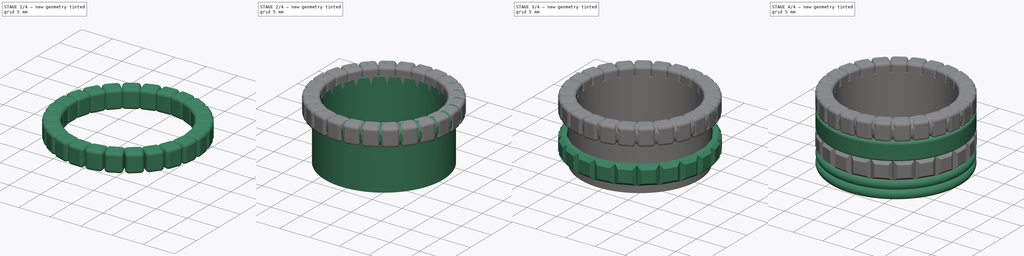
[diagram: build sequence overview — one tinted view per stage of 4, left to right]
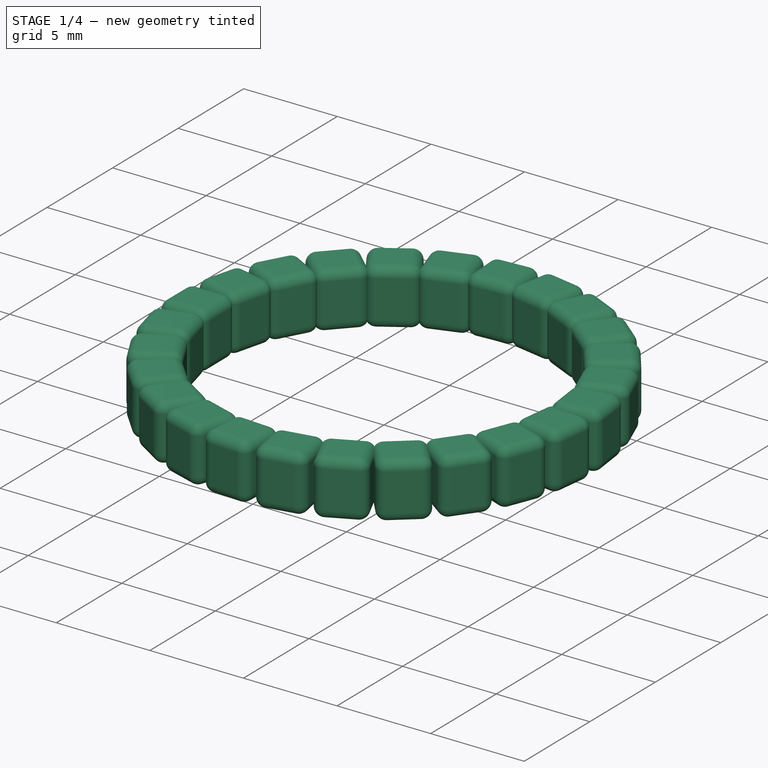
[diagram: stage 1 of 4 — iso view after this stage's code; geometry added in this stage tinted green]
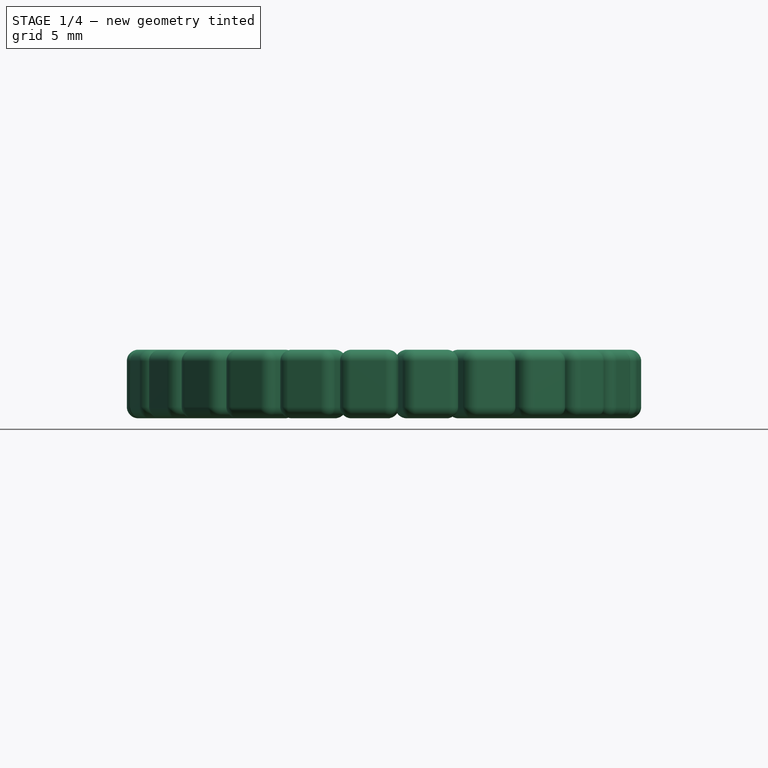
[diagram: stage 1 of 4 — front view after this stage's code; geometry added in this stage tinted green]
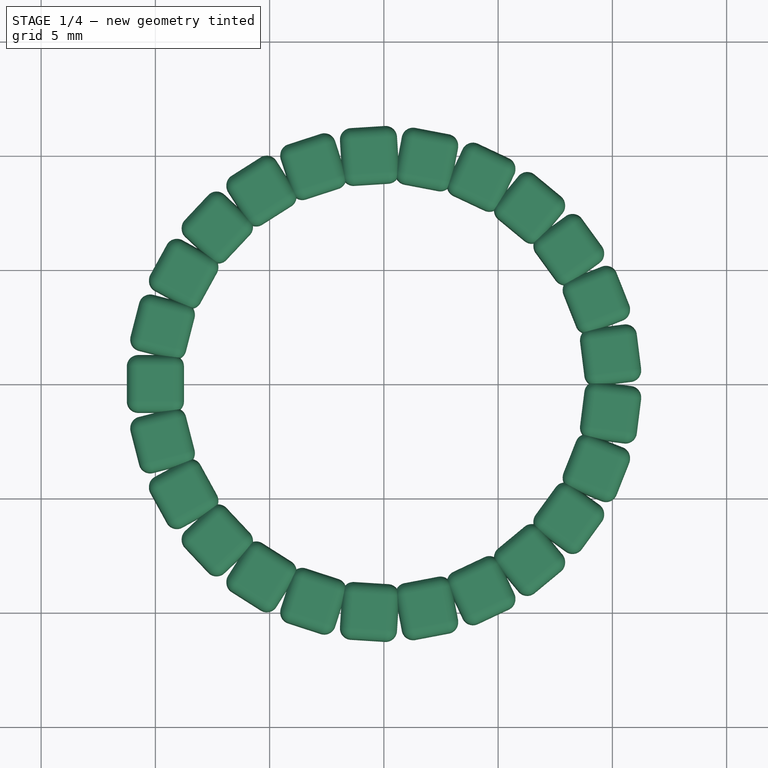
[diagram: stage 1 of 4 — top view after this stage's code; geometry added in this stage tinted green]
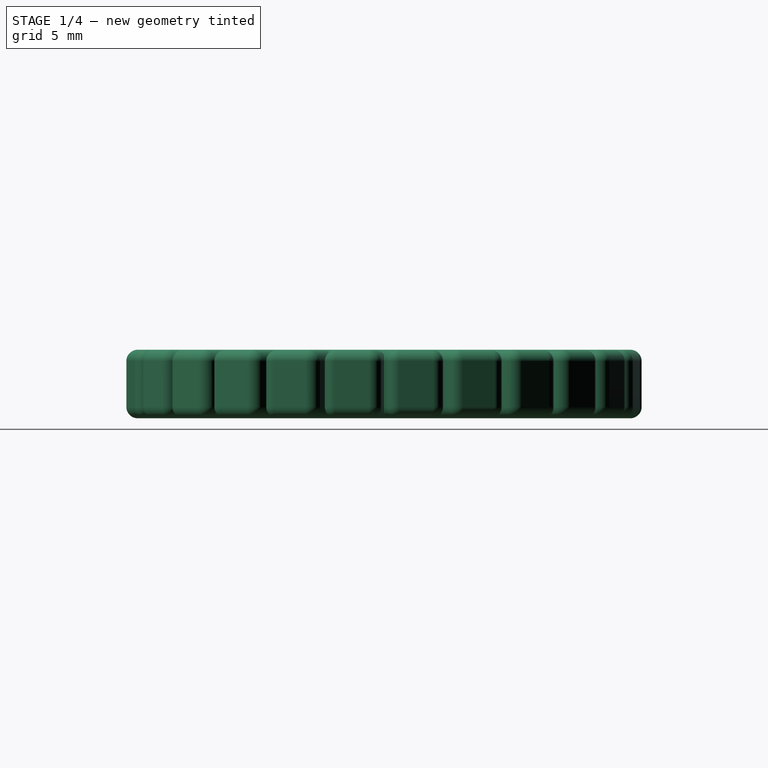
[diagram: stage 1 of 4 — right view after this stage's code; geometry added in this stage tinted green]
FCSTD DOCUMENT  (FreeCAD 1.0R39109 (Git))
Label: ring2
License: All rights reserved
LicenseURL: https://en.wikipedia.org/wiki/All_rights_reserved
objects: Sketcher::SketchObject×9, PartDesign::Revolution×5, PartDesign::Body×5, PartDesign::Pad×3, PartDesign::PolarPattern×3, Spreadsheet::Sheet×1, PartDesign::Chamfer×1, PartDesign::Fillet×1
note: 59 computed .brp shape members not serialized (recipe doc carries the construction recipe); baked Part::Feature solids carry a one-line shape summary decoded from their .brp

FEATURE [PartDesign::Body] Body  label="GrosGrain"
  AllowCompound = false
  Group = -> [Sketch,Revolution,PolarPattern,Sketch007,Revolution003]
  Origin = -> Origin
  Tip = -> Revolution003
FEATURE [Sketcher::SketchObject] Sketch008
  ArcFitTolerance = 1e-06
  AttachmentSupport = -> [XZ_Plane006]
  FullyConstrained = false
  MakeInternals = false
  MapMode = 5
  Placement = pos=(0,0,0) rot=(1,0,0;1.5708rad)
  expr: Constraints[10] = Spreadsheet.ring_radius
  expr: Constraints[8] = <<Spreadsheet>>.pearl_radius * 2
  expr: Constraints[9] = Spreadsheet.pearl_height
  sketch-geometry (4):
    g0: LineSegment StartX=-11.25 StartY=2.95111 StartZ=0 EndX=-11.25 EndY=-0.0488913 EndZ=0
    g1: LineSegment StartX=-11.25 StartY=-0.0488913 StartZ=0 EndX=-8.75 EndY=-0.0488913 EndZ=0
    g2: LineSegment StartX=-8.75 StartY=-0.0488913 StartZ=0 EndX=-8.75 EndY=2.95111 EndZ=0
    g3: LineSegment StartX=-8.75 StartY=2.95111 StartZ=0 EndX=-11.25 EndY=2.95111 EndZ=0
  constraints (11):
    c: Coincident(g0,g1)
    c: Coincident(g1,g2)
    c: Coincident(g2,g3)
    c: Coincident(g3,g0)
    c: Vertical(g0)
    c: Vertical(g2)
    c: Horizontal(g1)
    c: Horizontal(g3)
    c: DistanceX(g3,g3) = 2.5
    c: DistanceY(g0,g0) = 3
    c: Distance(g-2,g0) = 11.25
FEATURE [PartDesign::Pad] Pad002
  Direction = (0,-1,2e-16)
  Length = 2.5
  Length2 = 10
  Midplane = true
  Placement = pos=(0,0,0) rot=(1,0,0;1.5708rad)
  Profile = -> Sketch008
  ReferenceAxis = -> Sketch008 [N_Axis]
  Refine = true
  Suppressed = false
  Type = 0
  expr: Length = Spreadsheet.pearl_radius * 2
FEATURE [PartDesign::Fillet] Fillet
  Base = -> Pad002 [Edge1,Edge2,Edge3,Edge4,Edge5,Edge6,Edge7,Edge8,Edge9,Edge10,Edge11,Edge12]
  BaseFeature = -> Pad002
  Placement = pos=(0,0,0) rot=(1,0,0;1.5708rad)
  Radius = 0.5
  Refine = true
  SupportTransform = false
  Suppressed = false
  UseAllEdges = true
FEATURE [PartDesign::PolarPattern] PolarPattern002
  Angle = 360
  Axis = -> Z_Axis006
  BaseFeature = -> Fillet
  Mode = 0
  Occurrences = 25
  Offset = 120
  Originals = -> [Fillet]
  Placement = pos=(0,0,0) rot=(1,0,0;1.5708rad)
  Refine = true
  Suppressed = false
  TransformMode = 1
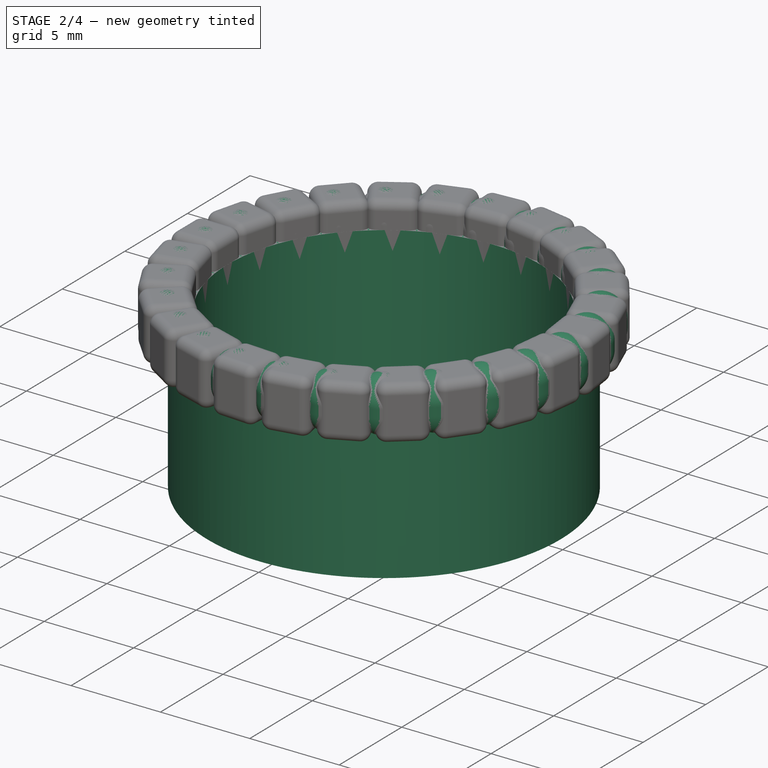
[diagram: stage 2 of 4 — iso view after this stage's code; geometry added in this stage tinted green]
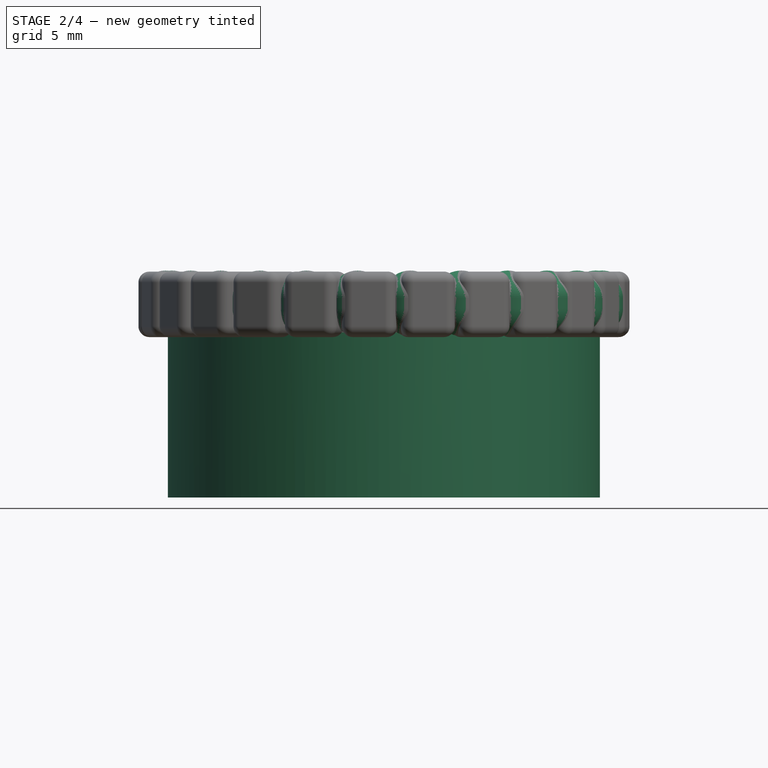
[diagram: stage 2 of 4 — front view after this stage's code; geometry added in this stage tinted green]
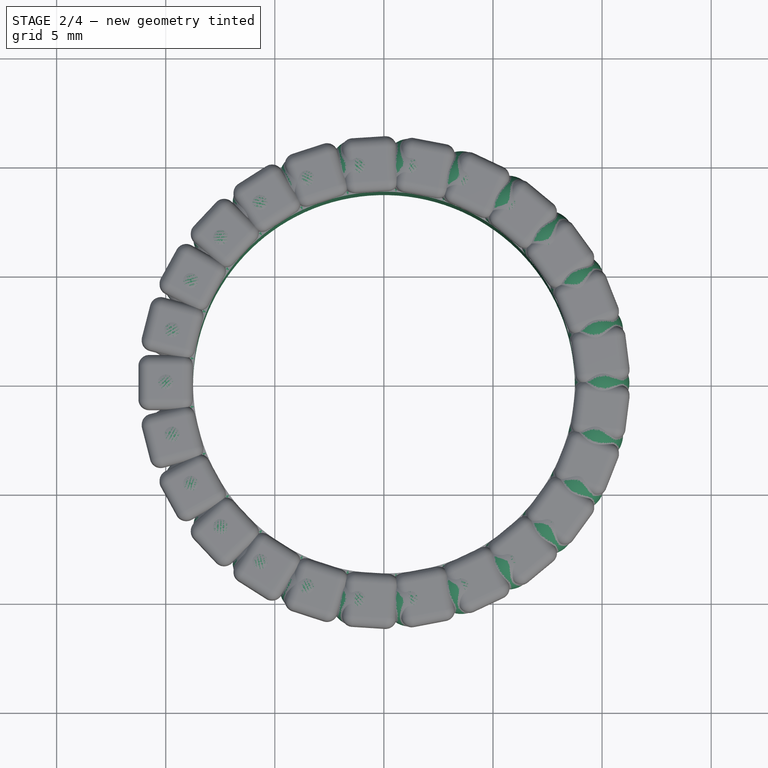
[diagram: stage 2 of 4 — top view after this stage's code; geometry added in this stage tinted green]
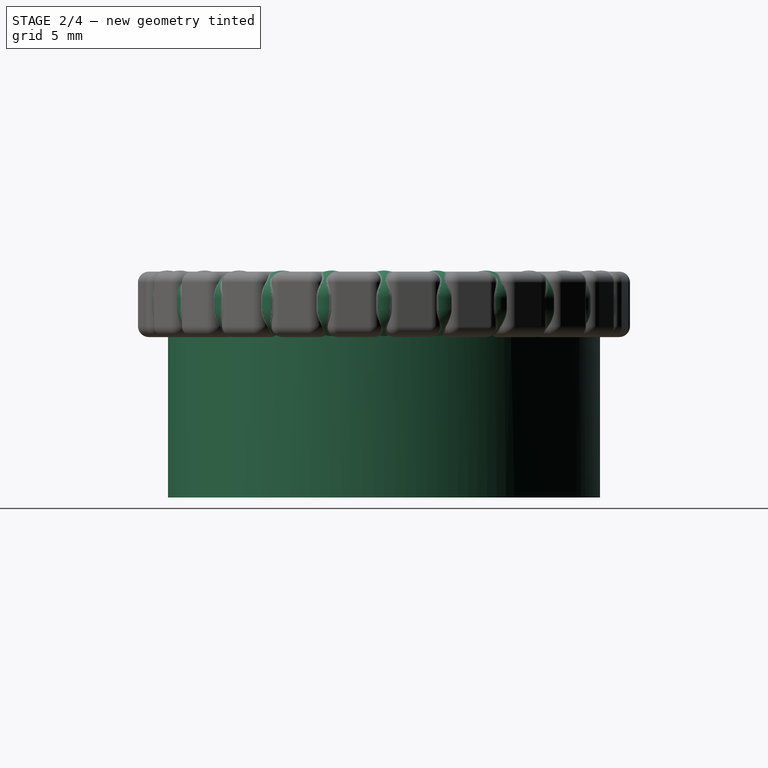
[diagram: stage 2 of 4 — right view after this stage's code; geometry added in this stage tinted green]
FEATURE [Sketcher::SketchObject] Sketch
  ArcFitTolerance = 1e-06
  AttachmentSupport = -> [XZ_Plane]
  FullyConstrained = true
  MakeInternals = false
  MapMode = 5
  Placement = pos=(0,0,0) rot=(1,0,0;1.5708rad)
  expr: Constraints[11] = Spreadsheet.ring_radius - Spreadsheet.pearl_radius
  expr: Constraints[12] = Spreadsheet.pearl_radius
  expr: Constraints[13] = Spreadsheet.pearl_radius
  expr: Constraints[2] = Spreadsheet.pearl_height - 2 * Spreadsheet.pearl_radius
  expr: Constraints[7] = Spreadsheet.pearl_height
  expr: Constraints[8] = Spreadsheet.pearl_radius
  expr: Constraints[9] = Spreadsheet.pearl_radius
  sketch-geometry (4):
    g0: LineSegment StartX=11.25 StartY=1.25 StartZ=0 EndX=11.25 EndY=1.75 EndZ=0
    g1: ArcOfCircle CenterX=10 CenterY=1.75 CenterZ=0 NormalX=0 NormalY=0 NormalZ=1 AngleXU=0 Radius=1.25 StartAngle=1e-16 EndAngle=1.5708
    g2: ArcOfCircle CenterX=10 CenterY=1.25 CenterZ=0 NormalX=0 NormalY=0 NormalZ=1 AngleXU=0 Radius=1.25 StartAngle=4.71239 EndAngle=6.28319
    g3: LineSegment StartX=10 StartY=3 StartZ=0 EndX=10 EndY=0 EndZ=0
  constraints (14):
    c: Vertical(g0)
    c: Coincident(g1,g0)
    c: DistanceY(g0,g0) = 0.5
    c: PointOnObject(g2,g-1)
    c: Coincident(g3,g1)
    c: Coincident(g3,g2)
    c: Vertical(g3)
    c: DistanceY(g3,g3) = 3
    c: DistanceY(g0,g1) = 1.25
    c: DistanceX(g2,g0) = 1.25
    c: Coincident(g0,g2)
    c: Distance(g-2,g3) = 10
    c: Radius(g1) = 1.25
    c: Radius(g2) = 1.25
FEATURE [Spreadsheet::Sheet] Spreadsheet
  cells = A1='ring_radius; B1(ring_radius)=11.25; A2='ring_thick; B2(ring_thick)=1.25; A3='ring_inner; B3(ring_inner)=8.75; A4='ring_gap; B4(ring_gap)=0.1; A5='pearl_radius; B5(pearl_radius)=1.25; A6='peaal_height; B6(pearl_height)=3; A7='pearl_perimeter; B7(pearl_perimeter)==pi * 2 * ring_radius; A8='pearl_count; B8(pearl_count)=25; A9='godron_radius; B9(godron_radius)==3 / 4; A10='godron_height; B10(godron_height)=3; A11='jonc_height; B11(jonc_height)=3; A12='clou_height; B12(clou_height)=3
FEATURE [PartDesign::Revolution] Revolution
  Angle = 360
  Angle2 = 60
  Axis = (0,-2e-16,-1)
  Base = (10,7e-16,3)
  Placement = pos=(0,0,0) rot=(1,0,0;1.5708rad)
  Profile = -> Sketch
  ReferenceAxis = -> Sketch [Edge3]
  Refine = true
  Reversed = true
  Suppressed = false
  Type = 0
FEATURE [PartDesign::Body] Body005  label="Clou"
  AllowCompound = false
  Group = -> [Sketch006,Pad001,Chamfer,PolarPattern001]
  Origin = -> Origin005
  Tip = -> PolarPattern001
FEATURE [PartDesign::PolarPattern] PolarPattern
  Angle = 360
  Axis = -> Z_Axis
  BaseFeature = -> Revolution
  Mode = 0
  Occurrences = 26
  Offset = 120
  Originals = -> [Revolution]
  Placement = pos=(0,0,0) rot=(1,0,0;1.5708rad)
  Refine = true
  Suppressed = false
  TransformMode = 0
FEATURE [Sketcher::SketchObject] Sketch009
  ArcFitTolerance = 1e-06
  AttachmentSupport = -> [XZ_Plane006]
  FullyConstrained = true
  MakeInternals = false
  MapMode = 5
  Placement = pos=(0,0,0) rot=(1,0,0;1.5708rad)
  expr: Constraints[10] = Spreadsheet.pearl_height / 2
  expr: Constraints[11] = Spreadsheet.jonc_height + Spreadsheet.clou_height + Spreadsheet.godron_height / 2 - Spreadsheet.ring_gap
  expr: Constraints[8] = Spreadsheet.ring_inner
  expr: Constraints[9] = Spreadsheet.ring_thick - Spreadsheet.ring_gap
  sketch-geometry (4):
    g0: LineSegment StartX=-9.9 StartY=1.5 StartZ=0 EndX=-9.9 EndY=-7.4 EndZ=0
    g1: LineSegment StartX=-9.9 StartY=-7.4 StartZ=0 EndX=-8.75 EndY=-7.4 EndZ=0
    g2: LineSegment StartX=-8.75 StartY=-7.4 StartZ=0 EndX=-8.75 EndY=1.5 EndZ=0
    g3: LineSegment StartX=-8.75 StartY=1.5 StartZ=0 EndX=-9.9 EndY=1.5 EndZ=0
  constraints (12):
    c: Coincident(g0,g1)
    c: Coincident(g1,g2)
    c: Coincident(g2,g3)
    c: Coincident(g3,g0)
    c: Vertical(g0)
    c: Vertical(g2)
    c: Horizontal(g1)
    c: Horizontal(g3)
    c: Distance(g-2,g2) = 8.75
    c: DistanceX(g3,g3) = 1.15
    c: Distance(g-1,g3) = 1.5
    c: Distance(g1,g-1) = 7.4
FEATURE [PartDesign::Revolution] Revolution004
  Angle = 360
  Angle2 = 60
  Axis = (0,2e-16,1)
  Base = (0,0,0)
  BaseFeature = -> PolarPattern002
  Placement = pos=(0,0,0) rot=(1,0,0;1.5708rad)
  Profile = -> Sketch009
  ReferenceAxis = -> Sketch009 [V_Axis]
  Refine = true
  Suppressed = false
  Type = 0
FEATURE [PartDesign::Body] Body006  label="GrosGrain2"
  AllowCompound = false
  Group = -> [Sketch008,Pad002,Fillet,PolarPattern002,Sketch009,Revolution004]
  Origin = -> Origin006
  Tip = -> Revolution004
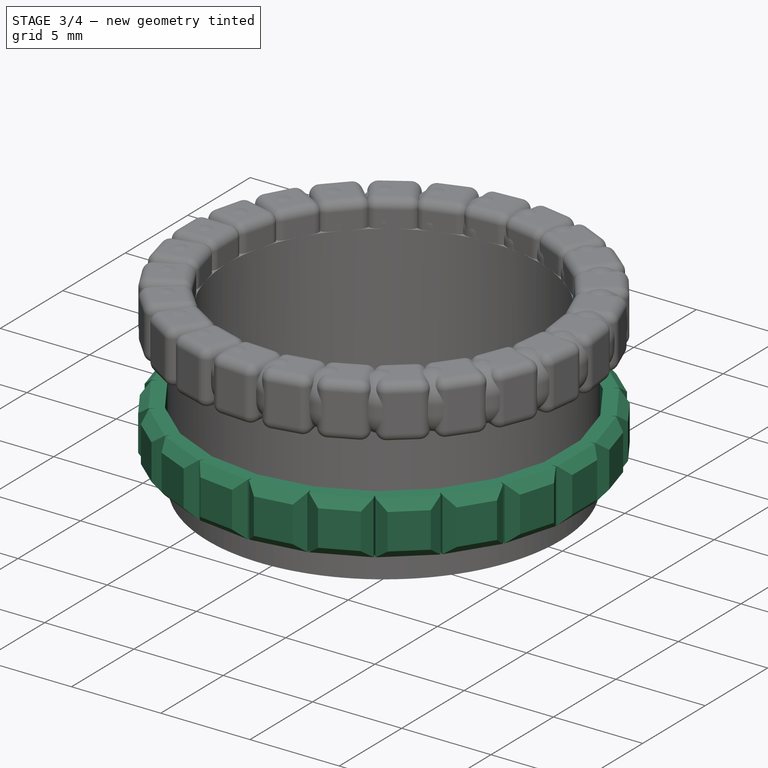
[diagram: stage 3 of 4 — iso view after this stage's code; geometry added in this stage tinted green]
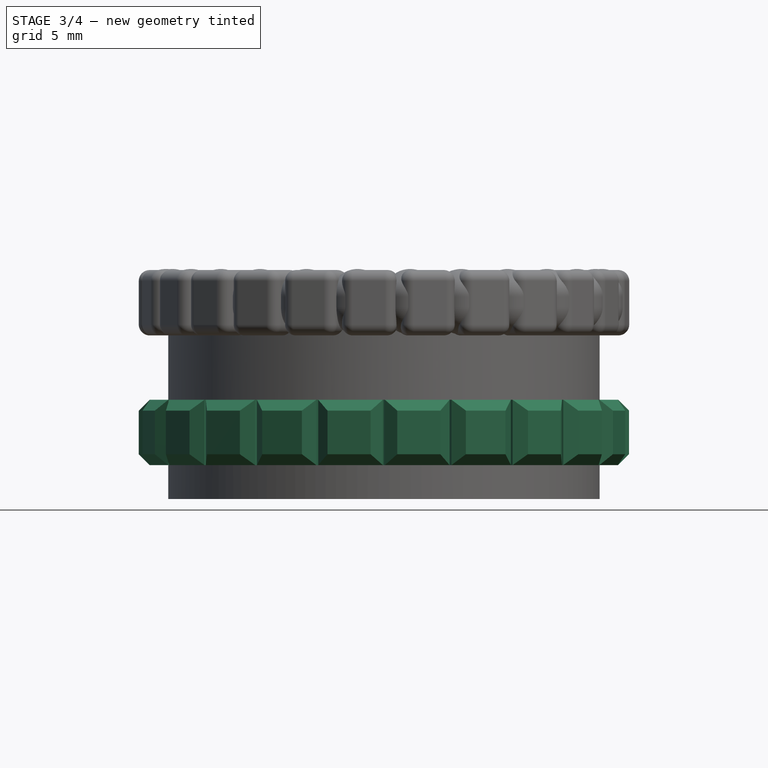
[diagram: stage 3 of 4 — front view after this stage's code; geometry added in this stage tinted green]
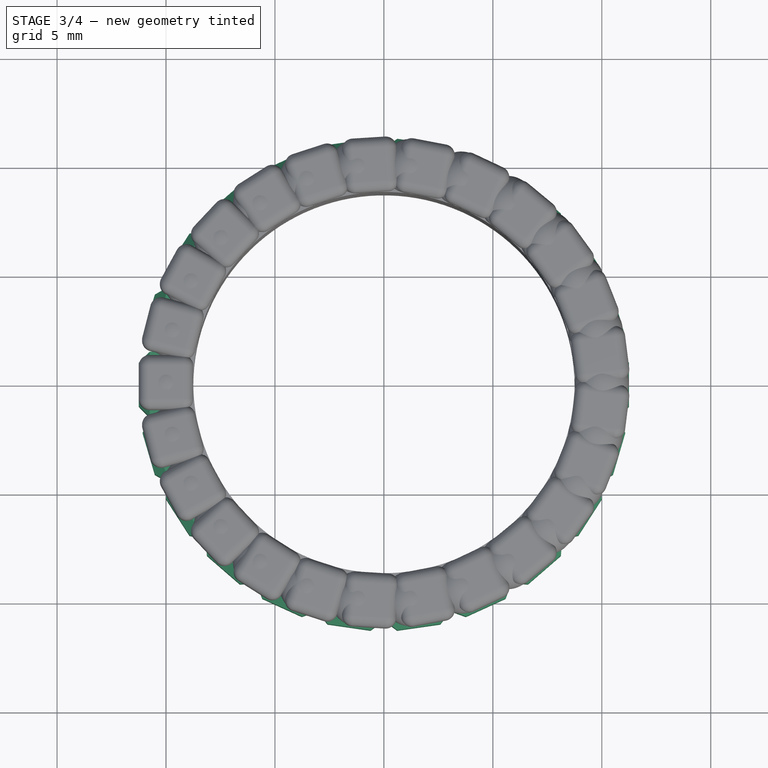
[diagram: stage 3 of 4 — top view after this stage's code; geometry added in this stage tinted green]
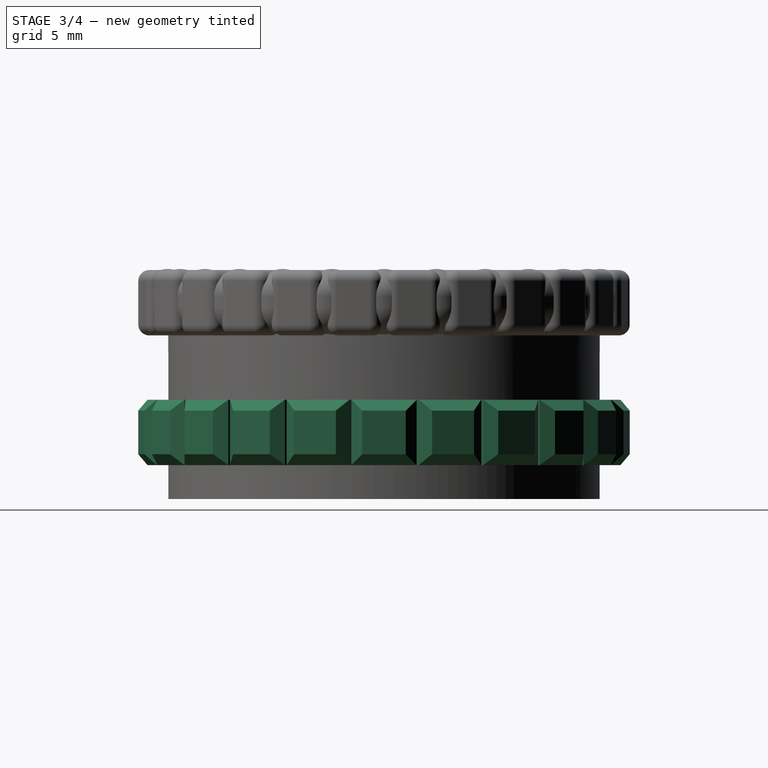
[diagram: stage 3 of 4 — right view after this stage's code; geometry added in this stage tinted green]
FEATURE [Sketcher::SketchObject] Sketch005
  ArcFitTolerance = 1e-06
  FullyConstrained = true
  MakeInternals = false
  MapMode = 5
  Placement = pos=(0,0,0) rot=(0.57735,0.57735,0.57735;2.0944rad)
FEATURE [PartDesign::Body] Body003  label="JoncSimple"
  AllowCompound = false
  Group = -> [Sketch002,Revolution002,Sketch004,Pad,Sketch005]
  Origin = -> Origin003
  Tip = -> Pad
FEATURE [Sketcher::SketchObject] Sketch006
  ArcFitTolerance = 1e-06
  AttachmentOffset = pos=(0,0,11.25) rot=(0,0,1;0rad)
  AttachmentSupport = -> [YZ_Plane005]
  FullyConstrained = true
  MakeInternals = false
  MapMode = 5
  Placement = pos=(11.25,0,0) rot=(0.57735,0.57735,0.57735;2.0944rad)
  expr: .AttachmentOffset.Base.z = Spreadsheet.ring_radius
  expr: Constraints[7] = Spreadsheet.clou_height
  expr: Constraints[8] = Spreadsheet.clou_height
  expr: Constraints[9] = Spreadsheet.jonc_height
  sketch-geometry (4):
    g0: LineSegment StartX=-1.5 StartY=-3 StartZ=0 EndX=-1.5 EndY=-6 EndZ=0
    g1: LineSegment StartX=-1.5 StartY=-6 StartZ=0 EndX=1.5 EndY=-6 EndZ=0
    g2: LineSegment StartX=1.5 StartY=-6 StartZ=0 EndX=1.5 EndY=-3 EndZ=0
    g3: LineSegment StartX=1.5 StartY=-3 StartZ=0 EndX=-1.5 EndY=-3 EndZ=0
  constraints (11):
    c: Coincident(g0,g1)
    c: Coincident(g1,g2)
    c: Coincident(g2,g3)
    c: Coincident(g3,g0)
    c: Vertical(g0)
    c: Vertical(g2)
    c: Horizontal(g1)
    c: DistanceY(g2,g2) = 3
    c: DistanceX(g1,g1) = 3
    c: Distance(g2,g-1) = 3
    c: Symmetric(g0,g2,g-2)
FEATURE [PartDesign::Pad] Pad001
  Direction = (1,0,0)
  Length = 1.25
  Length2 = 10
  Placement = pos=(0,0,0) rot=(1,1,1;2.0944rad)
  Profile = -> Sketch006
  ReferenceAxis = -> Sketch006 [N_Axis]
  Refine = true
  Reversed = true
  Suppressed = false
  Type = 0
  expr: Length = Spreadsheet.ring_thick
FEATURE [PartDesign::Chamfer] Chamfer
  Angle = 45
  Base = -> Pad001 [Edge9,Edge11,Edge3,Edge6]
  BaseFeature = -> Pad001
  ChamferType = 0
  FlipDirection = false
  Placement = pos=(0,0,0) rot=(1,1,1;2.0944rad)
  Refine = true
  Size = 0.5
  Size2 = 1
  SupportTransform = false
  Suppressed = false
  UseAllEdges = false
FEATURE [PartDesign::PolarPattern] PolarPattern001
  Angle = 360
  Axis = -> Z_Axis005
  BaseFeature = -> Chamfer
  Mode = 0
  Occurrences = 22
  Offset = 120
  Originals = -> [Chamfer]
  Placement = pos=(0,0,0) rot=(1,1,1;2.0944rad)
  Refine = true
  Suppressed = false
  TransformMode = 1
FEATURE [Sketcher::SketchObject] Sketch007
  ArcFitTolerance = 1e-06
  AttachmentSupport = -> [XZ_Plane]
  FullyConstrained = false
  MakeInternals = false
  MapMode = 5
  Placement = pos=(0,0,0) rot=(1,0,0;1.5708rad)
  expr: Constraints[10] = Spreadsheet.godron_height / 2 + Spreadsheet.jonc_height + Spreadsheet.clou_height + Spreadsheet.godron_height / 2 - Spreadsheet.ring_gap
  expr: Constraints[8] = Spreadsheet.ring_inner
  expr: Constraints[9] = Spreadsheet.ring_thick - Spreadsheet.ring_gap
  sketch-geometry (4):
    g0: LineSegment StartX=9.9 StartY=1.34245 StartZ=0 EndX=8.75 EndY=1.34245 EndZ=0
    g1: LineSegment StartX=8.75 StartY=1.34245 StartZ=0 EndX=8.75 EndY=-7.55755 EndZ=0
    g2: LineSegment StartX=8.75 StartY=-7.55755 StartZ=0 EndX=9.9 EndY=-7.55755 EndZ=0
    g3: LineSegment StartX=9.9 StartY=-7.55755 StartZ=0 EndX=9.9 EndY=1.34245 EndZ=0
  constraints (11):
    c: Coincident(g0,g1)
    c: Coincident(g1,g2)
    c: Coincident(g2,g3)
    c: Coincident(g3,g0)
    c: Horizontal(g0)
    c: Horizontal(g2)
    c: Vertical(g1)
    c: Vertical(g3)
    c: Distance(g1,g-2) = 8.75
    c: Distance(g3,g1) = 1.15
    c: DistanceY(g3,g3) = 8.9
FEATURE [PartDesign::Revolution] Revolution003
  Angle = 360
  Angle2 = 60
  Axis = (0,2e-16,1)
  Base = (0,0,0)
  BaseFeature = -> PolarPattern
  Placement = pos=(0,0,0) rot=(1,0,0;1.5708rad)
  Profile = -> Sketch007
  ReferenceAxis = -> Sketch007 [V_Axis]
  Refine = true
  Reversed = true
  Suppressed = false
  Type = 0
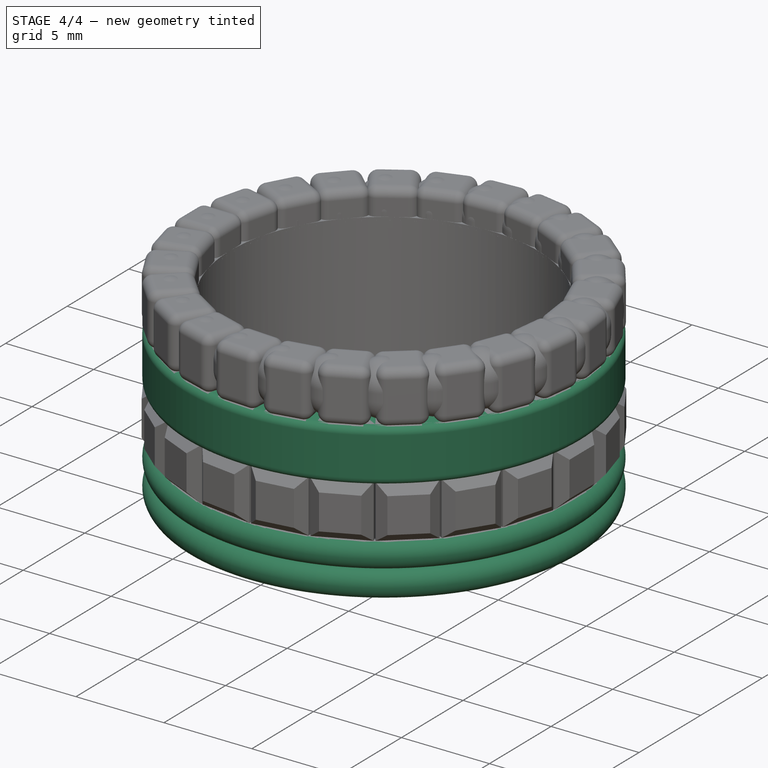
[diagram: stage 4 of 4 — iso view after this stage's code; geometry added in this stage tinted green]
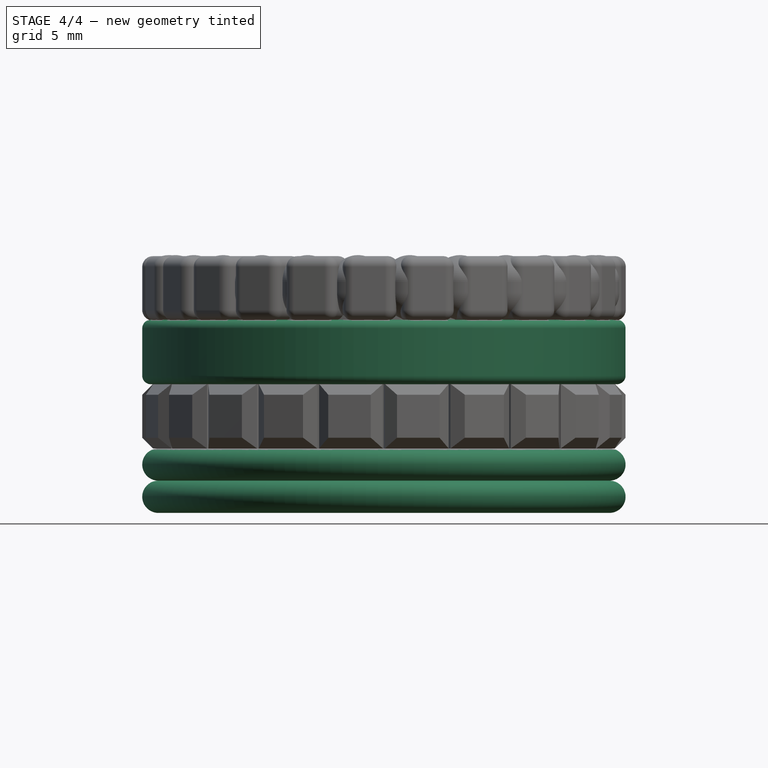
[diagram: stage 4 of 4 — front view after this stage's code; geometry added in this stage tinted green]
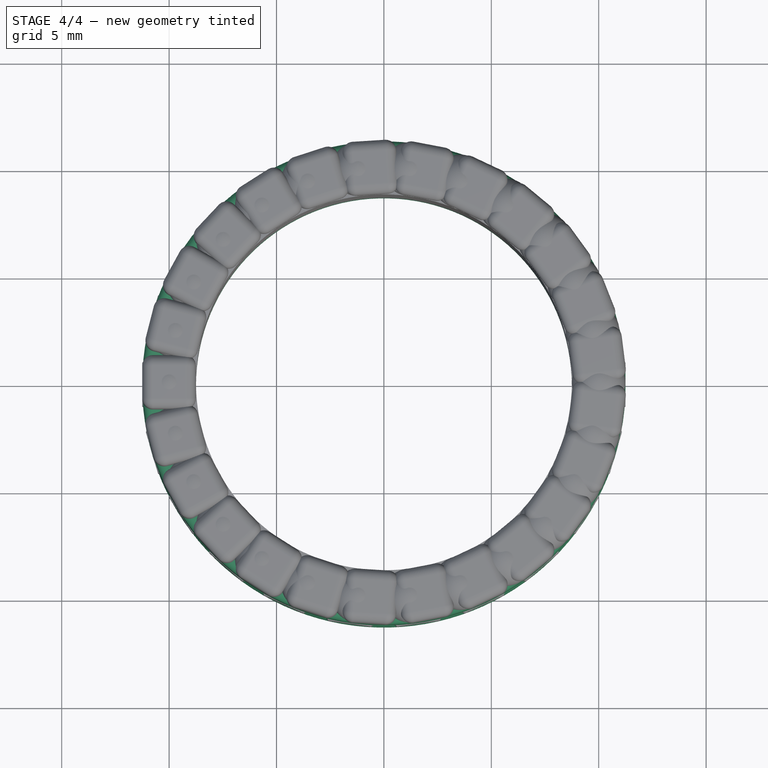
[diagram: stage 4 of 4 — top view after this stage's code; geometry added in this stage tinted green]
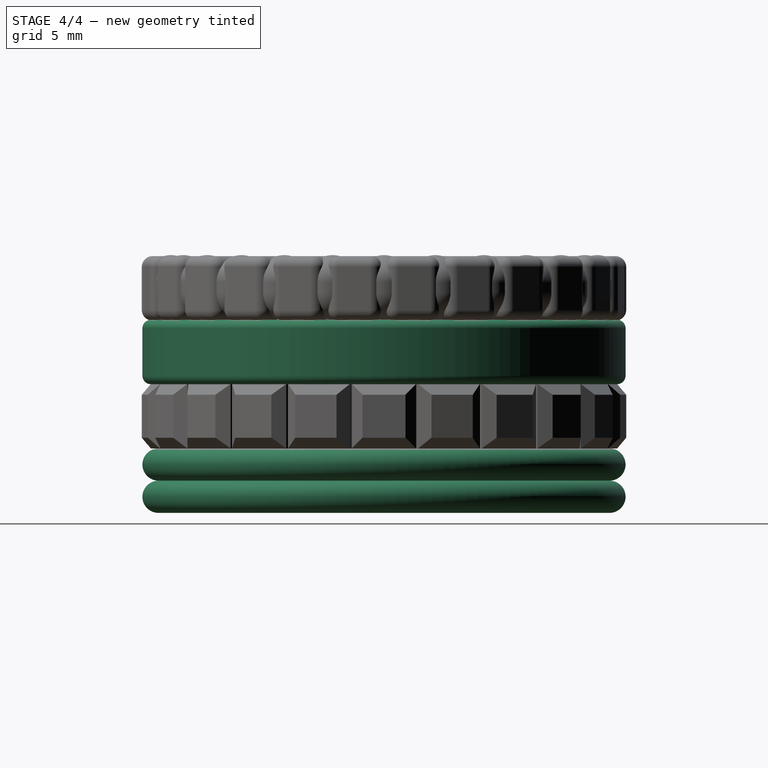
[diagram: stage 4 of 4 — right view after this stage's code; geometry added in this stage tinted green]
FEATURE [Sketcher::SketchObject] Sketch001
  ArcFitTolerance = 1e-06
  AttachmentSupport = -> [XZ_Plane001]
  FullyConstrained = true
  MakeInternals = false
  MapMode = 5
  Placement = pos=(0,0,0) rot=(1,0,0;1.5708rad)
  expr: Constraints[25] = Spreadsheet.ring_thick - Spreadsheet.godron_radius
  expr: Constraints[26] = Spreadsheet.ring_thick - Spreadsheet.godron_radius
  expr: Constraints[38] = Spreadsheet.ring_inner
  expr: Constraints[39] = Spreadsheet.godron_height / 2 - Spreadsheet.ring_gap
  expr: Constraints[5] = Spreadsheet.ring_radius - Spreadsheet.ring_thick
  expr: Constraints[6] = Spreadsheet.godron_radius
  expr: Constraints[7] = Spreadsheet.godron_radius
  expr: Constraints[8] = Spreadsheet.jonc_height + Spreadsheet.clou_height
  sketch-geometry (15):
    g0: LineSegment StartX=10 StartY=-6 StartZ=0 EndX=10 EndY=-9 EndZ=0
    g1: LineSegment StartX=10 StartY=-9 StartZ=0 EndX=10.5 EndY=-9 EndZ=0
    g2: LineSegment StartX=10.5 StartY=-6 StartZ=0 EndX=10 EndY=-6 EndZ=0
    g3: GeomPoint X=10.5 Y=-6.75 Z=0
    g4: GeomPoint X=10.5 Y=-8.25 Z=0
    g5: LineSegment [constr] StartX=10 StartY=-6 StartZ=0 EndX=10 EndY=-9 EndZ=0
    g6: LineSegment [constr] StartX=10 StartY=-9 StartZ=0 EndX=10.5 EndY=-9 EndZ=0
    g7: LineSegment [constr] StartX=10.5 StartY=-9 StartZ=0 EndX=10.5 EndY=-6 EndZ=0
    g8: LineSegment [constr] StartX=10.5 StartY=-6 StartZ=0 EndX=10 EndY=-6 EndZ=0
    g9: ArcOfCircle CenterX=10.5 CenterY=-8.25 CenterZ=0 NormalX=0 NormalY=0 NormalZ=1 AngleXU=0 Radius=0.75 StartAngle=4.71239 EndAngle=7.85398
    g10: ArcOfCircle CenterX=10.5 CenterY=-6.75 CenterZ=0 NormalX=0 NormalY=0 NormalZ=1 AngleXU=0 Radius=0.75 StartAngle=4.71239 EndAngle=7.85398
    g11: LineSegment StartX=10 StartY=-9 StartZ=0 EndX=10 EndY=-7.6 EndZ=0
    g12: LineSegment StartX=10 StartY=-7.6 StartZ=0 EndX=8.75 EndY=-7.6 EndZ=0
    g13: LineSegment StartX=8.75 StartY=-7.6 StartZ=0 EndX=8.75 EndY=-9 EndZ=0
    g14: LineSegment StartX=8.75 StartY=-9 StartZ=0 EndX=10 EndY=-9 EndZ=0
  constraints (40):
    c: Coincident(g0,g1)
    c: Coincident(g2,g0)
    c: Vertical(g0)
    c: Horizontal(g1)
    c: Horizontal(g2)
    c: Distance(g0,g-2) = 10
    c: Distance(g3,g2) = 0.75
    c: Distance(g4,g1) = 0.75
    c: Distance(g-1,g2) = 6
    c: Coincident(g5,g6)
    c: Coincident(g6,g7)
    c: Coincident(g7,g8)
    c: Coincident(g8,g5)
    c: Vertical(g5)
    c: Vertical(g7)
    c: Horizontal(g6)
    c: Horizontal(g8)
    c: Coincident(g5,g0)
    c: Coincident(g6,g1)
    c: Coincident(g9,g4)
    c: Coincident(g9,g1)
    c: Symmetric(g7,g7,g9)
    c: Coincident(g10,g3)
    c: Coincident(g10,g2)
    c: PointOnObject(g10,g7)
    c: Distance(g9,g0) = 0.5
    c: Distance(g3,g0) = 0.5
    c: Radius(g10) = 0.75
    c: Radius(g9) = 0.75
    c: Coincident(g11,g12)
    c: Coincident(g12,g13)
    c: Coincident(g13,g14)
    c: Coincident(g14,g11)
    c: Vertical(g11)
    c: Vertical(g13)
    c: Horizontal(g12)
    c: Horizontal(g14)
    c: Coincident(g11,g0)
    c: Distance(g13,g-2) = 8.75
    c: Distance(g14,g12) = 1.4
FEATURE [PartDesign::Revolution] Revolution001
  Angle = 360
  Angle2 = 60
  Axis = (0,2e-16,1)
  Base = (0,0,0)
  Placement = pos=(0,0,0) rot=(1,0,0;1.5708rad)
  Profile = -> Sketch001
  ReferenceAxis = -> Sketch001 [V_Axis]
  Refine = true
  Reversed = true
  Suppressed = false
  Type = 0
FEATURE [PartDesign::Body] Body001  label="DoubleGodron"
  AllowCompound = false
  Group = -> [Sketch001,Revolution001]
  Origin = -> Origin001
  Tip = -> Revolution001
FEATURE [Sketcher::SketchObject] Sketch002
  ArcFitTolerance = 1e-06
  AttachmentSupport = -> [XZ_Plane003]
  FullyConstrained = true
  MakeInternals = false
  MapMode = 5
  Placement = pos=(0,0,0) rot=(1,0,0;1.5708rad)
  expr: Constraints[6] = Spreadsheet.ring_radius - Spreadsheet.ring_thick
  expr: Constraints[7] = Spreadsheet.ring_thick
  expr: Constraints[8] = Spreadsheet.jonc_height
  sketch-geometry (10):
    g0: LineSegment StartX=10 StartY=-0.01 StartZ=0 EndX=10 EndY=-3.01 EndZ=0
    g1: LineSegment StartX=10 StartY=-3.01 StartZ=0 EndX=10.85 EndY=-3.01 EndZ=0
    g2: LineSegment StartX=11.25 StartY=-2.61 StartZ=0 EndX=11.25 EndY=-0.41 EndZ=0
    g3: LineSegment StartX=10.85 StartY=-0.01 StartZ=0 EndX=10 EndY=-0.01 EndZ=0
    g4: GeomPoint [constr] X=11.25 Y=-0.01 Z=0
    g5: GeomPoint [constr] X=11.25 Y=-3.01 Z=0
    g6: ArcOfCircle CenterX=10.85 CenterY=-0.41 CenterZ=0 NormalX=0 NormalY=0 NormalZ=1 AngleXU=0 Radius=0.4 StartAngle=1e-16 EndAngle=1.5708
    g7: GeomPoint [constr] X=11.25 Y=-0.01 Z=0
    g8: ArcOfCircle CenterX=10.85 CenterY=-2.61 CenterZ=0 NormalX=0 NormalY=0 NormalZ=1 AngleXU=0 Radius=0.4 StartAngle=4.71239 EndAngle=6.28319
    g9: GeomPoint [constr] X=11.25 Y=-3.01 Z=0
  constraints (24):
    c: Coincident(g0,g1)
    c: Coincident(g3,g0)
    c: Vertical(g0)
    c: Vertical(g2)
    c: Horizontal(g1)
    c: Horizontal(g3)
    c: Distance(g0,g-2) = 10
    c: DistanceX(g1,g5) = 1.25
    c: DistanceY(g5,g4) = 3
    c: Distance(g4,g-1) = 0.01
    c: PointOnObject(g4,g2)
    c: PointOnObject(g4,g3)
    c: PointOnObject(g5,g1)
    c: PointOnObject(g5,g2)
    c: PointOnObject(g7,g3)
    c: PointOnObject(g7,g2)
    c: Tangent(g3,g6) = -1.5708
    c: Tangent(g2,g6) = -1.5708
    c: Radius(g6) = 0.4
    c: PointOnObject(g9,g2)
    c: PointOnObject(g9,g1)
    c: Tangent(g2,g8) = -1.5708
    c: Tangent(g1,g8) = -1.5708
    c: Radius(g8) = 0.4
FEATURE [PartDesign::Revolution] Revolution002
  Angle = 360
  Angle2 = 60
  Axis = (0,2e-16,1)
  Base = (0,0,0)
  Placement = pos=(0,0,0) rot=(1,0,0;1.5708rad)
  Profile = -> Sketch002
  ReferenceAxis = -> Sketch002 [V_Axis]
  Refine = true
  Reversed = true
  Suppressed = false
  Type = 0
FEATURE [Sketcher::SketchObject] Sketch004
  ArcFitTolerance = 1e-06
  AttachmentSupport = -> [YZ_Plane003]
  FullyConstrained = false
  MakeInternals = false
  MapMode = 5
  Placement = pos=(0,0,0) rot=(0.57735,0.57735,0.57735;2.0944rad)
  expr: Constraints[8] = Spreadsheet.clou_height
  expr: Constraints[9] = Spreadsheet.clou_height
  sketch-geometry (4):
    g0: LineSegment StartX=-1.74335 StartY=-7.13531 StartZ=0 EndX=-1.74335 EndY=-10.1353 EndZ=0
    g1: LineSegment StartX=-1.74335 StartY=-10.1353 StartZ=0 EndX=1.25665 EndY=-10.1353 EndZ=0
    g2: LineSegment StartX=1.25665 StartY=-10.1353 StartZ=0 EndX=1.25665 EndY=-7.13531 EndZ=0
    g3: LineSegment StartX=1.25665 StartY=-7.13531 StartZ=0 EndX=-1.74335 EndY=-7.13531 EndZ=0
  constraints (10):
    c: Coincident(g0,g1)
    c: Coincident(g1,g2)
    c: Coincident(g2,g3)
    c: Coincident(g3,g0)
    c: Vertical(g0)
    c: Vertical(g2)
    c: Horizontal(g1)
    c: Horizontal(g3)
    c: DistanceX(g1,g1) = 3
    c: DistanceY(g2,g2) = 3
FEATURE [PartDesign::Pad] Pad
  BaseFeature = -> Revolution002
  Direction = (1,0,0)
  Length = 11.25
  Length2 = 10
  Placement = pos=(0,0,0) rot=(1,0,0;1.5708rad)
  Profile = -> Sketch004
  ReferenceAxis = -> Sketch004 [N_Axis]
  Refine = true
  Suppressed = false
  Type = 0
  expr: Length = Spreadsheet.ring_radius
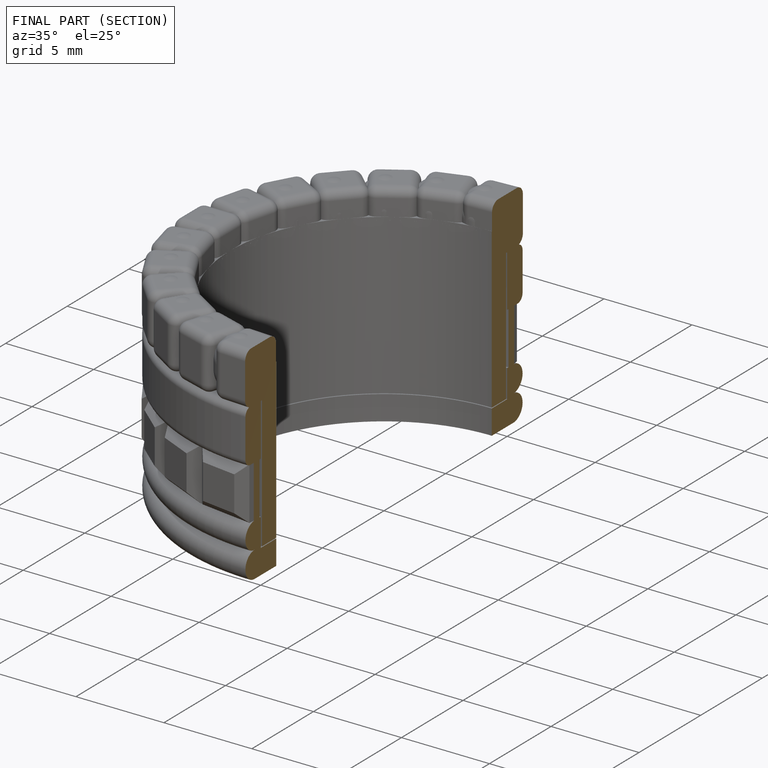
[diagram: finished part — half-section view (interior)]
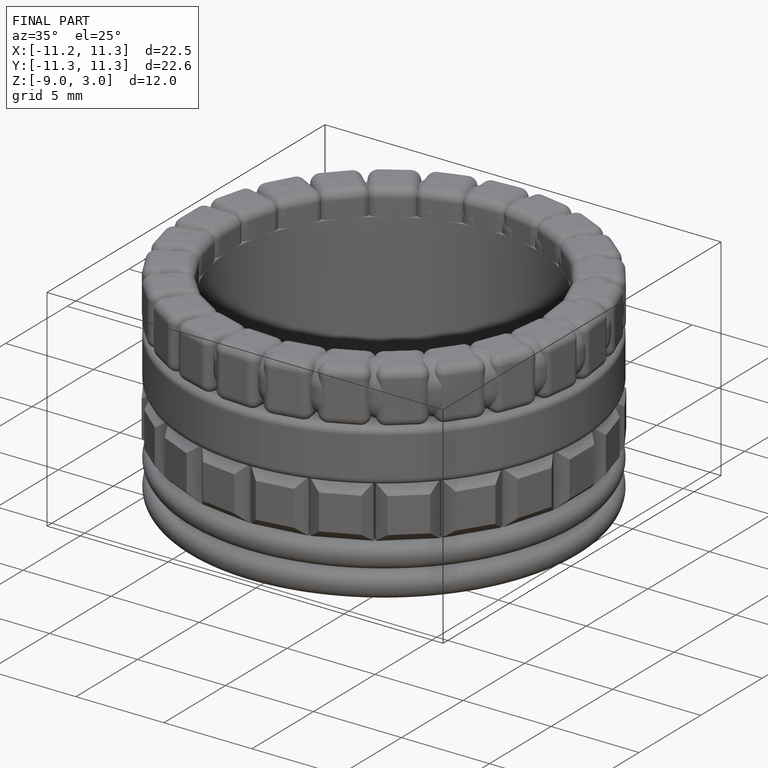
[diagram: finished part — iso view with bounding-box wireframe]
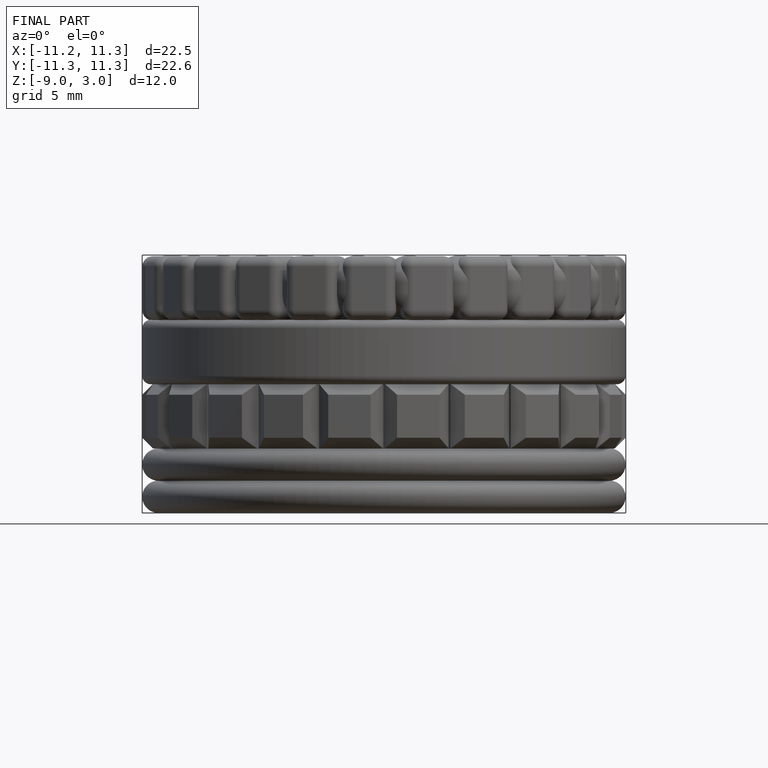
[diagram: finished part — front view with bounding-box wireframe]
